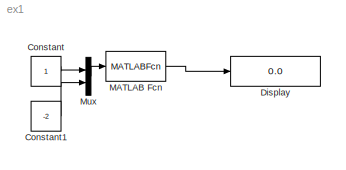
MODEL ex1
KIND model
BLOCK [Constant] Constant
BLOCK [Constant] Constant1
  Value = -2
BLOCK [Display] Display
  Decimation = 1
  Ports = [1]
BLOCK [MATLABFcn] MATLAB Fcn
  MATLABFcn = functieg(1,-2)
BLOCK [Mux] Mux
  DisplayOption = bar
  Inputs = 2
  Ports = [2, 1]
LINE Constant1:1 -> Mux:2
LINE Constant:1 -> Mux:1
LINE MATLAB Fcn:1 -> Display:1
LINE Mux:1 -> MATLAB Fcn:1
